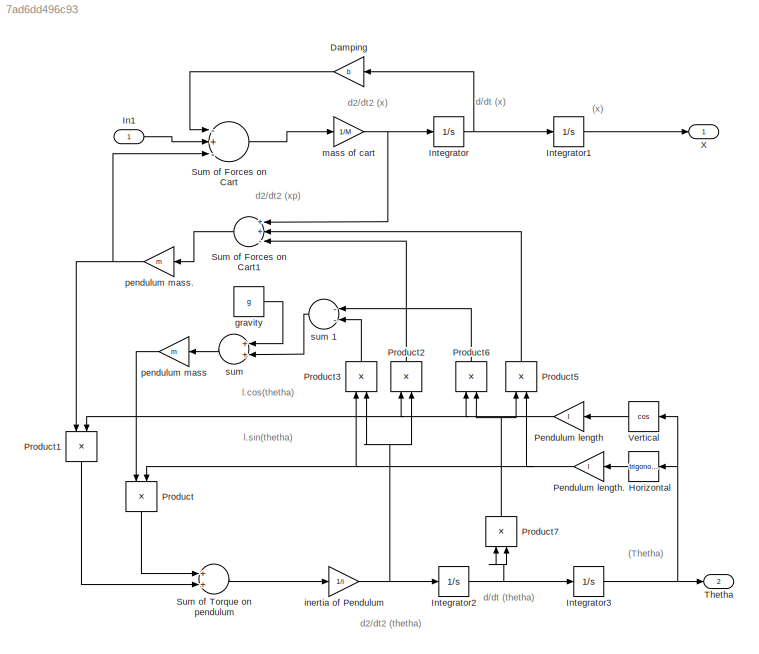
MODEL slx_7ad6dd496c93
KIND model
CONFIG AbsTol = auto
CONFIG FixedStep = auto
CONFIG MaxStep = auto
CONFIG MinStep = auto
CONFIG RelTol = 1e-3
CONFIG SampleTimeConstraint = Unconstrained
CONFIG Solver = VariableStepAuto
CONFIG SolverMode = SingleTasking
CONFIG SolverName = VariableStepAuto
CONFIG StartTime = 0.0
CONFIG StopTime = 10.0
BLOCK [Gain] Damping
  Gain = b
  OutDataTypeStr = Inherit: Inherit via internal rule
  ParamDataTypeStr = Inherit: Inherit via internal rule
  SaturateOnIntegerOverflow = off
BLOCK [Trigonometry] Horizontal
  Ports = [1, 1]
BLOCK [Inport] In1
  IconDisplay = Port number
BLOCK [Integrator] Integrator
  Ports = [1, 1]
BLOCK [Integrator] Integrator1
  Ports = [1, 1]
BLOCK [Integrator] Integrator2
  Ports = [1, 1]
BLOCK [Integrator] Integrator3
  Ports = [1, 1]
BLOCK [Gain] Pendulum length
  Gain = l
  OutDataTypeStr = Inherit: Inherit via internal rule
  ParamDataTypeStr = Inherit: Inherit via internal rule
  SaturateOnIntegerOverflow = off
BLOCK [Gain] Pendulum length.
  Gain = l
  OutDataTypeStr = Inherit: Inherit via internal rule
  ParamDataTypeStr = Inherit: Inherit via internal rule
  SaturateOnIntegerOverflow = off
BLOCK [Product] Product
  InputSameDT = off
  OutDataTypeStr = Inherit: Inherit via internal rule
  Ports = [2, 1]
  RndMeth = Floor
  SaturateOnIntegerOverflow = off
BLOCK [Product] Product1
  InputSameDT = off
  OutDataTypeStr = Inherit: Inherit via internal rule
  Ports = [2, 1]
  RndMeth = Floor
  SaturateOnIntegerOverflow = off
BLOCK [Product] Product2
  InputSameDT = off
  OutDataTypeStr = Inherit: Inherit via internal rule
  Ports = [2, 1]
  RndMeth = Floor
  SaturateOnIntegerOverflow = off
BLOCK [Product] Product3
  InputSameDT = off
  OutDataTypeStr = Inherit: Inherit via internal rule
  Ports = [2, 1]
  RndMeth = Floor
  SaturateOnIntegerOverflow = off
BLOCK [Product] Product5
  InputSameDT = off
  OutDataTypeStr = Inherit: Inherit via internal rule
  Ports = [2, 1]
  RndMeth = Floor
  SaturateOnIntegerOverflow = off
BLOCK [Product] Product6
  InputSameDT = off
  OutDataTypeStr = Inherit: Inherit via internal rule
  Ports = [2, 1]
  RndMeth = Floor
  SaturateOnIntegerOverflow = off
BLOCK [Product] Product7
  InputSameDT = off
  OutDataTypeStr = Inherit: Inherit via internal rule
  Ports = [2, 1]
  RndMeth = Floor
  SaturateOnIntegerOverflow = off
BLOCK [Sum] Sum of Forces on Cart
  InputSameDT = off
  Inputs = -+-
  OutDataTypeStr = Inherit: Inherit via internal rule
  Ports = [3, 1]
  SaturateOnIntegerOverflow = off
BLOCK [Sum] Sum of Forces on Cart1
  InputSameDT = off
  Inputs = ++-
  OutDataTypeStr = Inherit: Inherit via internal rule
  Ports = [3, 1]
  SaturateOnIntegerOverflow = off
BLOCK [Sum] Sum of Torque  on pendulum
  InputSameDT = off
  OutDataTypeStr = Inherit: Inherit via internal rule
  Ports = [2, 1]
  SaturateOnIntegerOverflow = off
BLOCK [Outport] Thetha 
  IconDisplay = Port number
  Port = 2
BLOCK [Trigonometry] Vertical
  Operator = cos
  Ports = [1, 1]
BLOCK [Outport] X 
  IconDisplay = Port number
BLOCK [Constant] gravity
  Value = g
BLOCK [Gain] inertia of Pendulum 
  Gain = 1/i
  OutDataTypeStr = Inherit: Inherit via internal rule
  ParamDataTypeStr = Inherit: Inherit via internal rule
  SaturateOnIntegerOverflow = off
BLOCK [Gain] mass of cart
  Gain = 1/M
  OutDataTypeStr = Inherit: Inherit via internal rule
  ParamDataTypeStr = Inherit: Inherit via internal rule
  SaturateOnIntegerOverflow = off
BLOCK [Gain] pendulum mass 
  Gain = m
  OutDataTypeStr = Inherit: Inherit via internal rule
  ParamDataTypeStr = Inherit: Inherit via internal rule
  SaturateOnIntegerOverflow = off
BLOCK [Gain] pendulum mass. 
  Gain = m
  OutDataTypeStr = Inherit: Inherit via internal rule
  ParamDataTypeStr = Inherit: Inherit via internal rule
  SaturateOnIntegerOverflow = off
BLOCK [Sum] sum 
  InputSameDT = off
  OutDataTypeStr = Inherit: Inherit via internal rule
  Ports = [2, 1]
  SaturateOnIntegerOverflow = off
BLOCK [Sum] sum 1
  InputSameDT = off
  Inputs = --
  OutDataTypeStr = Inherit: Inherit via internal rule
  Ports = [2, 1]
  SaturateOnIntegerOverflow = off
ANNOTATION (root): (Thetha)
ANNOTATION (root): (x)
ANNOTATION (root): d/dt (thetha)
ANNOTATION (root): d/dt (x)
ANNOTATION (root): d2/dt2 (thetha)
ANNOTATION (root): d2/dt2 (x)
ANNOTATION (root): d2/dt2 (xp)
ANNOTATION (root): l.cos(thetha)
ANNOTATION (root): l.sin(thetha)
LINE Damping:1 -> Sum of Forces on Cart:1
LINE Horizontal:1 -> Pendulum length.:1
LINE In1:1 -> Sum of Forces on Cart:2
LINE Integrator1:1 -> X :1
NET Integrator2:1 -> Integrator3:1, Product7:1, Product7:2
NET Integrator3:1 -> Horizontal:1, Thetha :1, Vertical:1
NET Integrator:1 -> Damping:1, Integrator1:1
NET Pendulum length.:1 -> Product3:1, Product5:2, Product:2
NET Pendulum length:1 -> Product1:2, Product2:1, Product6:1
LINE Product1:1 -> Sum of Torque  on pendulum:2
LINE Product2:1 -> Sum of Forces on Cart1:3
LINE Product3:1 -> sum 1:2
LINE Product5:1 -> Sum of Forces on Cart1:2
LINE Product6:1 -> sum 1:1
NET Product7:1 -> Product5:1, Product6:2
LINE Product:1 -> Sum of Torque  on pendulum:1
LINE Sum of Forces on Cart1:1 -> pendulum mass. :1
LINE Sum of Forces on Cart:1 -> mass of cart:1
LINE Sum of Torque  on pendulum:1 -> inertia of Pendulum :1
LINE Vertical:1 -> Pendulum length:1
LINE gravity:1 -> sum :1
NET inertia of Pendulum :1 -> Integrator2:1, Product2:2, Product3:2
NET mass of cart:1 -> Integrator:1, Sum of Forces on Cart1:1
LINE pendulum mass :1 -> Product:1
NET pendulum mass. :1 -> Product1:1, Sum of Forces on Cart:3
LINE sum 1:1 -> sum :2
LINE sum :1 -> pendulum mass :1
note: NET lines group one-source signal fan-out (src -> all destinations, sorted); 1:1 wires keep LINE
